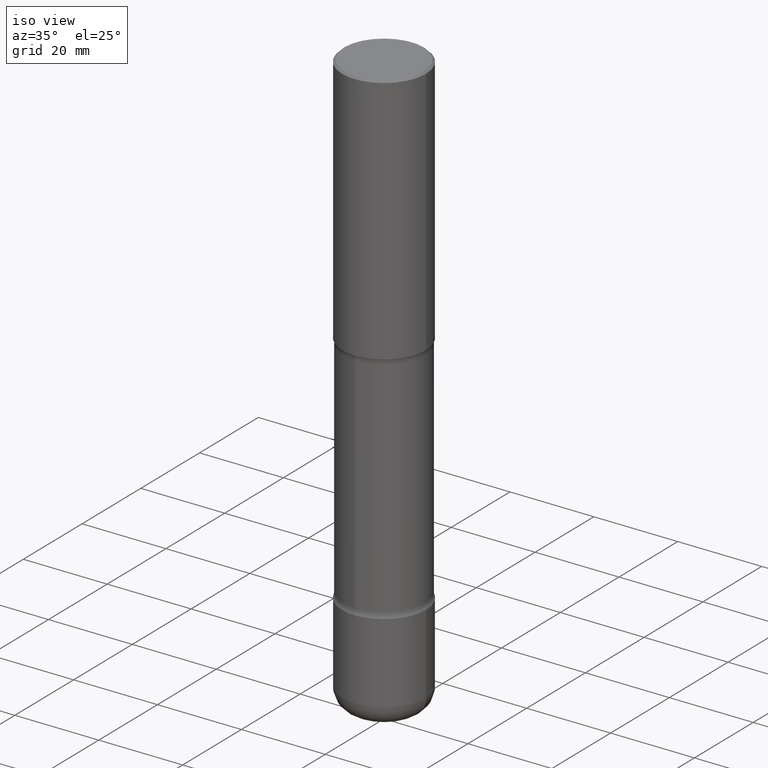
[diagram: clean part render]
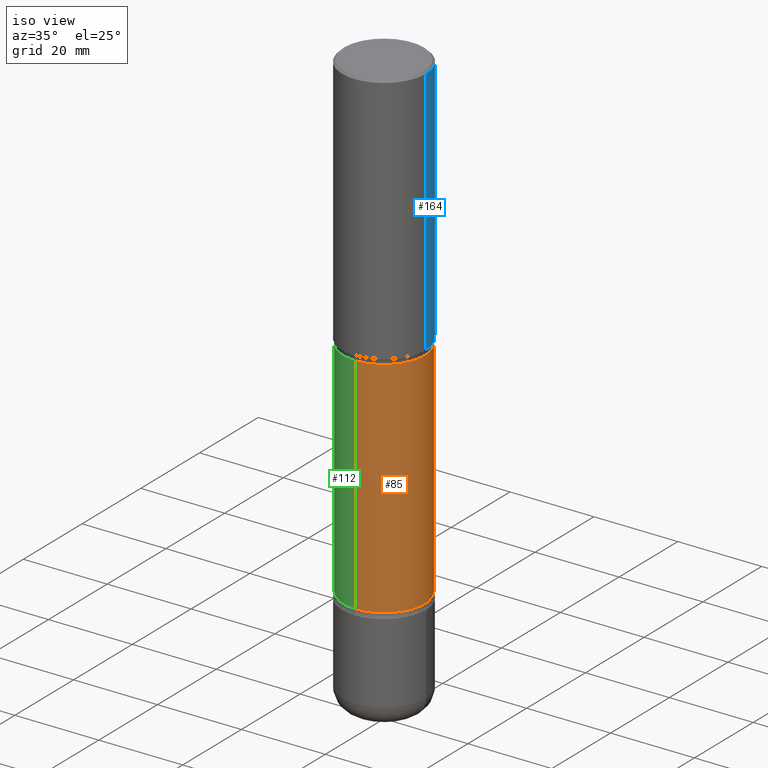
[diagram: same view with three faces highlighted in distinct colors, each labeled with its STEP entity id]
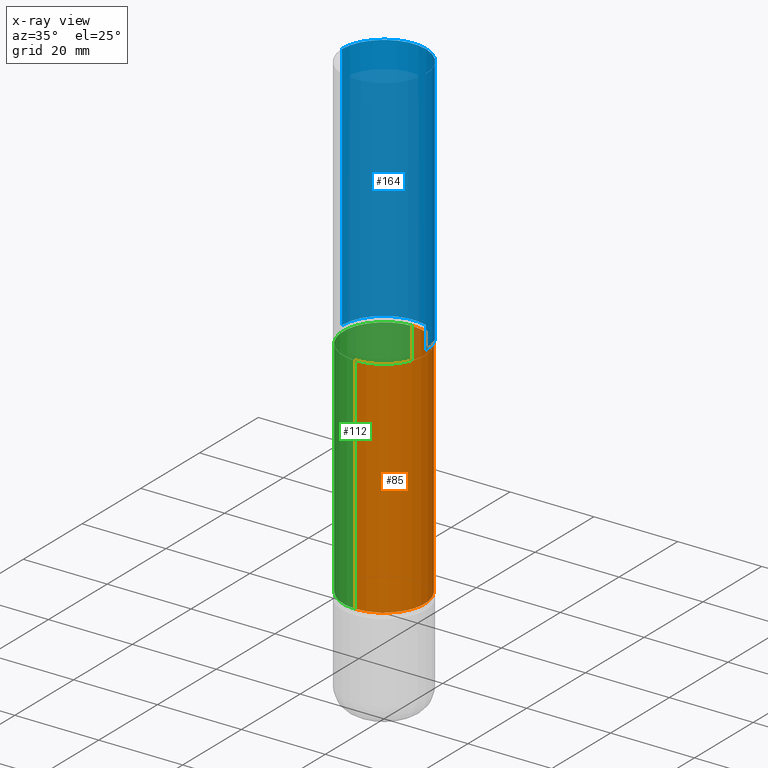
[diagram: x-ray of the same camera — body ghosted, the three highlighted faces saturated]
A machine part, iso view with three faces highlighted in distinct colors.
The next image is the same camera in x-ray (body ghosted, the three faces saturated) — at least one of them is partly hidden behind the body in this view.
Their STEP definitions:

[orange] entity #85 — the highlighted cylindrical surface (partial cylindrical patch) has radius 9.7409 mm, axis along (0, -0, -1).
#6 = CYLINDRICAL_SURFACE ( 'NONE', #523, 0.3835000000000001741 ) ;
#10 = CARTESIAN_POINT ( 'NONE',  ( 2.677966186892819583E-15, 0.3834999999999810227, -5.511800000000000921 ) ) ;
#24 = DIRECTION ( 'NONE',  ( 6.982962677686265133E-15, 1.000000000000000000, -2.849385130288669478E-15 ) ) ;
#36 = CIRCLE ( 'NONE', #239, 0.3835000000000002296 ) ;
#46 = LINE ( 'NONE', #10, #429 ) ;
#47 = DIRECTION ( 'NONE',  ( 2.540811743831259279E-29, -3.354944825550891508E-15, -1.000000000000000000 ) ) ;
#54 = CARTESIAN_POINT ( 'NONE',  ( 1.104255145972444542E-28, -1.577932180213095535E-14, -4.517443352317408234 ) ) ;
#61 = DIRECTION ( 'NONE',  ( 2.540811743831259279E-29, -3.354944825550891508E-15, -1.000000000000000000 ) ) ;
#83 = CARTESIAN_POINT ( 'NONE',  ( -2.665989521933907346E-15, -0.3835000000000159392, -4.517443352317407346 ) ) ;
#85 = ADVANCED_FACE ( 'NONE', ( #212 ), #6, .T. ) ;
#94 = ORIENTED_EDGE ( 'NONE', *, *, #287, .T. ) ;
#96 = DIRECTION ( 'NONE',  ( 2.540811743831259279E-29, -3.354944825550891508E-15, -1.000000000000000000 ) ) ;
#124 = CARTESIAN_POINT ( 'NONE',  ( 1.356902450771305887E-28, -1.911533349202580181E-14, -5.511800000000000033 ) ) ;
#125 = DIRECTION ( 'NONE',  ( 2.540811743831259279E-29, -3.354944825550891508E-15, -1.000000000000000000 ) ) ;
#135 = EDGE_CURVE ( 'NONE', #442, #488, #148, .T. ) ;
#143 = EDGE_CURVE ( 'NONE', #541, #364, #36, .T. ) ;
#148 = CIRCLE ( 'NONE', #491, 0.3835000000000001741 ) ;
#186 = ORIENTED_EDGE ( 'NONE', *, *, #135, .F. ) ;
#189 = VECTOR ( 'NONE', #96, 39.37007874015748143 ) ;
#212 = FACE_OUTER_BOUND ( 'NONE', #306, .T. ) ;
#225 = DIRECTION ( 'NONE',  ( 2.540811743831259279E-29, -3.354944825550891508E-15, -1.000000000000000000 ) ) ;
#239 = AXIS2_PLACEMENT_3D ( 'NONE', #276, #61, #548 ) ;
#251 = CARTESIAN_POINT ( 'NONE',  ( 2.677966186892794339E-15, 0.3834999999999843534, -4.517443352317409122 ) ) ;
#276 = CARTESIAN_POINT ( 'NONE',  ( 5.692143870584579365E-29, -8.714523593702518262E-15, -2.411656647682592247 ) ) ;
#287 = EDGE_CURVE ( 'NONE', #364, #488, #506, .T. ) ;
#306 = EDGE_LOOP ( 'NONE', ( #492, #94, #186, #512 ) ) ;
#364 = VERTEX_POINT ( 'NONE', #430 ) ;
#429 = VECTOR ( 'NONE', #125, 39.37007874015748143 ) ;
#430 = CARTESIAN_POINT ( 'NONE',  ( -2.665989521933963355E-15, -0.3835000000000089448, -2.411656647682590915 ) ) ;
#442 = VERTEX_POINT ( 'NONE', #251 ) ;
#447 = EDGE_CURVE ( 'NONE', #541, #442, #46, .T. ) ;
#453 = CARTESIAN_POINT ( 'NONE',  ( -2.631000982145247058E-15, -0.3835000000000192699, -5.511799999999999145 ) ) ;
#488 = VERTEX_POINT ( 'NONE', #83 ) ;
#490 = CARTESIAN_POINT ( 'NONE',  ( 2.677966186892741091E-15, 0.3834999999999914588, -2.411656647682594024 ) ) ;
#491 = AXIS2_PLACEMENT_3D ( 'NONE', #54, #225, #24 ) ;
#492 = ORIENTED_EDGE ( 'NONE', *, *, #143, .T. ) ;
#506 = LINE ( 'NONE', #453, #189 ) ;
#512 = ORIENTED_EDGE ( 'NONE', *, *, #447, .F. ) ;
#523 = AXIS2_PLACEMENT_3D ( 'NONE', #124, #47, #530 ) ;
#530 = DIRECTION ( 'NONE',  ( 6.982962677686265133E-15, 1.000000000000000000, -2.849385130288669478E-15 ) ) ;
#541 = VERTEX_POINT ( 'NONE', #490 ) ;
#548 = DIRECTION ( 'NONE',  ( 6.982962677686265133E-15, 1.000000000000000000, -3.561731412860836552E-15 ) ) ;

[blue] entity #164 — the highlighted cylindrical surface (partial cylindrical patch) has radius 10 mm, axis along (-0, 0, 1).
#30 = VERTEX_POINT ( 'NONE', #128 ) ;
#34 = VERTEX_POINT ( 'NONE', #123 ) ;
#40 = LINE ( 'NONE', #172, #403 ) ;
#50 = EDGE_LOOP ( 'NONE', ( #90, #547, #234, #103 ) ) ;
#57 = DIRECTION ( 'NONE',  ( 1.000000000000000000, -6.982962677686266711E-15, 4.876176775795935793E-29 ) ) ;
#66 = DIRECTION ( 'NONE',  ( -2.445468806185136877E-29, 3.491481338843145188E-15, 1.000000000000000000 ) ) ;
#88 = DIRECTION ( 'NONE',  ( -2.445468806185136597E-29, 3.491481338843145583E-15, 1.000000000000000000 ) ) ;
#90 = ORIENTED_EDGE ( 'NONE', *, *, #162, .T. ) ;
#97 = FACE_OUTER_BOUND ( 'NONE', #50, .T. ) ;
#103 = ORIENTED_EDGE ( 'NONE', *, *, #439, .F. ) ;
#109 = CARTESIAN_POINT ( 'NONE',  ( -0.3937000000000001054, 2.797406750687515181E-15, -1.936584745033357016E-29 ) ) ;
#123 = CARTESIAN_POINT ( 'NONE',  ( 0.3937000000000002164, -1.099676962482036442E-14, -2.362200000000000077 ) ) ;
#128 = CARTESIAN_POINT ( 'NONE',  ( -0.3937000000000000499, 2.679362779428219918E-15, -0.02000000000000008715 ) ) ;
#130 = CIRCLE ( 'NONE', #420, 0.3937000000000000499 ) ;
#139 = CARTESIAN_POINT ( 'NONE',  ( 0.3937000000000000499, -2.770807688499515734E-15, -0.02000000000000008715 ) ) ;
#158 = VERTEX_POINT ( 'NONE', #139 ) ;
#162 = EDGE_CURVE ( 'NONE', #34, #199, #177, .T. ) ;
#164 = ADVANCED_FACE ( 'NONE', ( #97 ), #217, .T. ) ;
#168 = DIRECTION ( 'NONE',  ( 1.000000000000000000, -6.982962677686265922E-15, 0.000000000000000000 ) ) ;
#172 = CARTESIAN_POINT ( 'NONE',  ( 0.3937000000000001054, -2.749192406205084005E-15, 1.919750796630860452E-29 ) ) ;
#177 = CIRCLE ( 'NONE', #246, 0.3937000000000002164 ) ;
#188 = LINE ( 'NONE', #109, #329 ) ;
#199 = VERTEX_POINT ( 'NONE', #220 ) ;
#215 = AXIS2_PLACEMENT_3D ( 'NONE', #269, #533, #57 ) ;
#217 = CYLINDRICAL_SURFACE ( 'NONE', #215, 0.3937000000000001054 ) ;
#220 = CARTESIAN_POINT ( 'NONE',  ( -0.3937000000000002720, -1.361296672008554112E-15, -2.362200000000000077 ) ) ;
#234 = ORIENTED_EDGE ( 'NONE', *, *, #412, .F. ) ;
#238 = EDGE_CURVE ( 'NONE', #199, #30, #188, .T. ) ;
#246 = AXIS2_PLACEMENT_3D ( 'NONE', #544, #455, #314 ) ;
#258 = DIRECTION ( 'NONE',  ( -2.445468806185136877E-29, 3.491481338843145188E-15, 1.000000000000000000 ) ) ;
#269 = CARTESIAN_POINT ( 'NONE',  ( 0.000000000000000000, 0.000000000000000000, 0.000000000000000000 ) ) ;
#314 = DIRECTION ( 'NONE',  ( 1.000000000000000000, -6.982962677686266711E-15, 0.000000000000000000 ) ) ;
#329 = VECTOR ( 'NONE', #66, 39.37007874015748143 ) ;
#346 = CARTESIAN_POINT ( 'NONE',  ( 4.890937612370294178E-31, -6.982962677686321191E-17, -0.02000000000000008715 ) ) ;
#403 = VECTOR ( 'NONE', #258, 39.37007874015748143 ) ;
#412 = EDGE_CURVE ( 'NONE', #158, #30, #130, .T. ) ;
#420 = AXIS2_PLACEMENT_3D ( 'NONE', #346, #88, #168 ) ;
#439 = EDGE_CURVE ( 'NONE', #34, #158, #40, .T. ) ;
#455 = DIRECTION ( 'NONE',  ( -2.445468806185136597E-29, 3.491481338843145583E-15, 1.000000000000000000 ) ) ;
#533 = DIRECTION ( 'NONE',  ( -2.445468806185136597E-29, 3.491481338843145583E-15, 1.000000000000000000 ) ) ;
#544 = CARTESIAN_POINT ( 'NONE',  ( 5.776686413970530874E-29, -8.247577218615279626E-15, -2.362200000000000077 ) ) ;
#547 = ORIENTED_EDGE ( 'NONE', *, *, #238, .T. ) ;

[green] entity #112 — the highlighted cylindrical surface (partial cylindrical patch) has radius 9.7409 mm, axis along (0, -0, -1).
#10 = CARTESIAN_POINT ( 'NONE',  ( 2.677966186892819583E-15, 0.3834999999999810227, -5.511800000000000921 ) ) ;
#13 = CARTESIAN_POINT ( 'NONE',  ( 1.356902450771305887E-28, -1.911533349202580181E-14, -5.511800000000000033 ) ) ;
#26 = ORIENTED_EDGE ( 'NONE', *, *, #287, .F. ) ;
#46 = LINE ( 'NONE', #10, #429 ) ;
#49 = CARTESIAN_POINT ( 'NONE',  ( 5.692143870584579365E-29, -8.714523593702518262E-15, -2.411656647682592247 ) ) ;
#63 = ORIENTED_EDGE ( 'NONE', *, *, #447, .T. ) ;
#83 = CARTESIAN_POINT ( 'NONE',  ( -2.665989521933907346E-15, -0.3835000000000159392, -4.517443352317407346 ) ) ;
#96 = DIRECTION ( 'NONE',  ( 2.540811743831259279E-29, -3.354944825550891508E-15, -1.000000000000000000 ) ) ;
#105 = DIRECTION ( 'NONE',  ( 2.540811743831259279E-29, -3.354944825550891508E-15, -1.000000000000000000 ) ) ;
#112 = ADVANCED_FACE ( 'NONE', ( #301 ), #389, .T. ) ;
#121 = EDGE_CURVE ( 'NONE', #488, #442, #320, .T. ) ;
#125 = DIRECTION ( 'NONE',  ( 2.540811743831259279E-29, -3.354944825550891508E-15, -1.000000000000000000 ) ) ;
#174 = DIRECTION ( 'NONE',  ( 6.982962677686265133E-15, 1.000000000000000000, -2.849385130288669478E-15 ) ) ;
#189 = VECTOR ( 'NONE', #96, 39.37007874015748143 ) ;
#198 = AXIS2_PLACEMENT_3D ( 'NONE', #49, #385, #388 ) ;
#244 = ORIENTED_EDGE ( 'NONE', *, *, #423, .T. ) ;
#251 = CARTESIAN_POINT ( 'NONE',  ( 2.677966186892794339E-15, 0.3834999999999843534, -4.517443352317409122 ) ) ;
#252 = AXIS2_PLACEMENT_3D ( 'NONE', #489, #317, #174 ) ;
#287 = EDGE_CURVE ( 'NONE', #364, #488, #506, .T. ) ;
#301 = FACE_OUTER_BOUND ( 'NONE', #309, .T. ) ;
#309 = EDGE_LOOP ( 'NONE', ( #26, #244, #63, #378 ) ) ;
#317 = DIRECTION ( 'NONE',  ( 2.540811743831259279E-29, -3.354944825550891508E-15, -1.000000000000000000 ) ) ;
#320 = CIRCLE ( 'NONE', #252, 0.3835000000000001741 ) ;
#364 = VERTEX_POINT ( 'NONE', #430 ) ;
#378 = ORIENTED_EDGE ( 'NONE', *, *, #121, .F. ) ;
#385 = DIRECTION ( 'NONE',  ( 2.540811743831259279E-29, -3.354944825550891508E-15, -1.000000000000000000 ) ) ;
#388 = DIRECTION ( 'NONE',  ( 6.982962677686265133E-15, 1.000000000000000000, -3.561731412860836552E-15 ) ) ;
#389 = CYLINDRICAL_SURFACE ( 'NONE', #505, 0.3835000000000001741 ) ;
#423 = EDGE_CURVE ( 'NONE', #364, #541, #452, .T. ) ;
#429 = VECTOR ( 'NONE', #125, 39.37007874015748143 ) ;
#430 = CARTESIAN_POINT ( 'NONE',  ( -2.665989521933963355E-15, -0.3835000000000089448, -2.411656647682590915 ) ) ;
#442 = VERTEX_POINT ( 'NONE', #251 ) ;
#447 = EDGE_CURVE ( 'NONE', #541, #442, #46, .T. ) ;
#452 = CIRCLE ( 'NONE', #198, 0.3835000000000002296 ) ;
#453 = CARTESIAN_POINT ( 'NONE',  ( -2.631000982145247058E-15, -0.3835000000000192699, -5.511799999999999145 ) ) ;
#488 = VERTEX_POINT ( 'NONE', #83 ) ;
#489 = CARTESIAN_POINT ( 'NONE',  ( 1.104255145972444542E-28, -1.577932180213095535E-14, -4.517443352317408234 ) ) ;
#490 = CARTESIAN_POINT ( 'NONE',  ( 2.677966186892741091E-15, 0.3834999999999914588, -2.411656647682594024 ) ) ;
#494 = DIRECTION ( 'NONE',  ( 6.982962677686265133E-15, 1.000000000000000000, -2.849385130288669478E-15 ) ) ;
#505 = AXIS2_PLACEMENT_3D ( 'NONE', #13, #105, #494 ) ;
#506 = LINE ( 'NONE', #453, #189 ) ;
#541 = VERTEX_POINT ( 'NONE', #490 ) ;